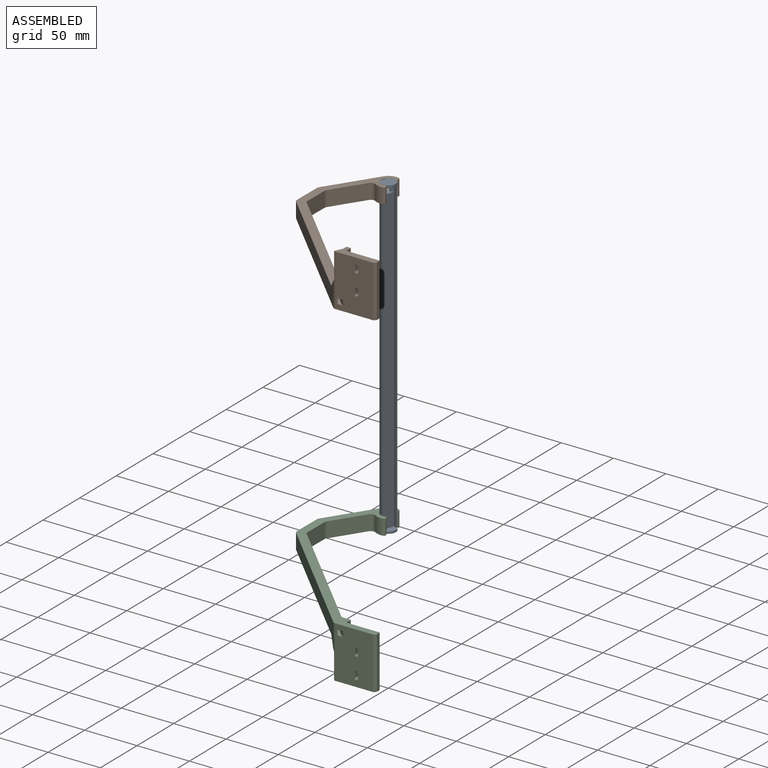
[diagram: assembled view]
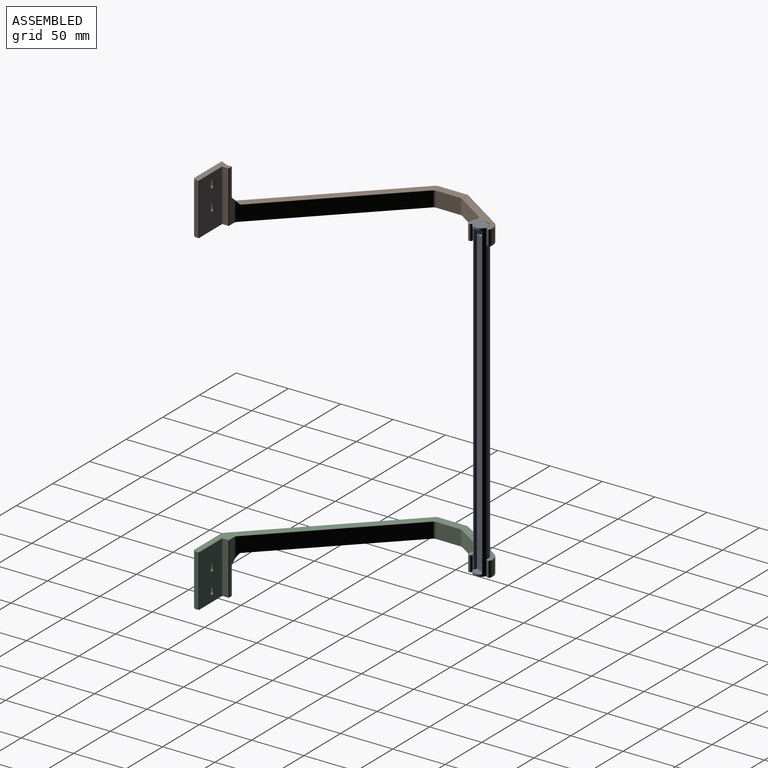
[diagram: assembled view, second angle]
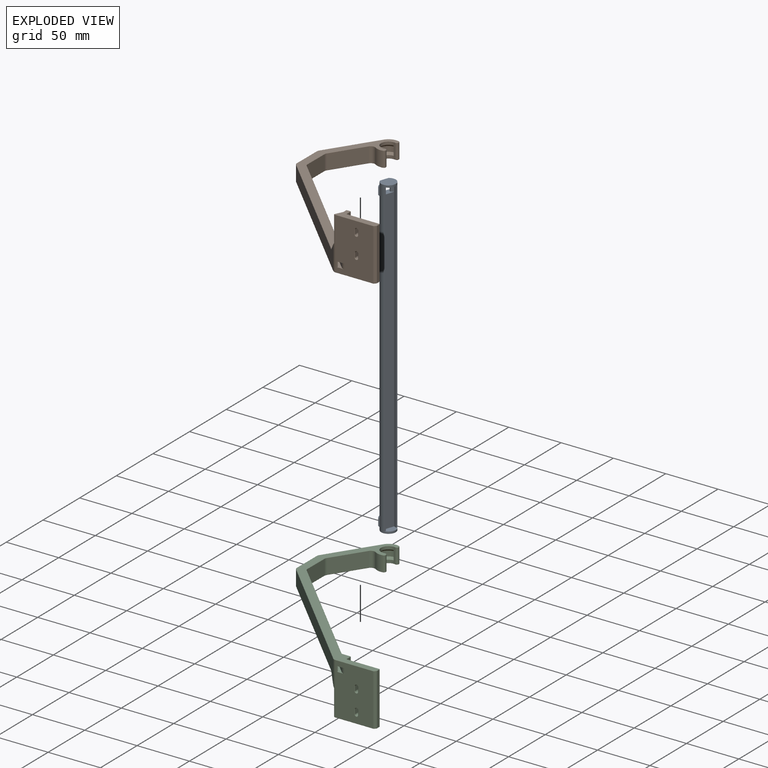
[diagram: exploded view]
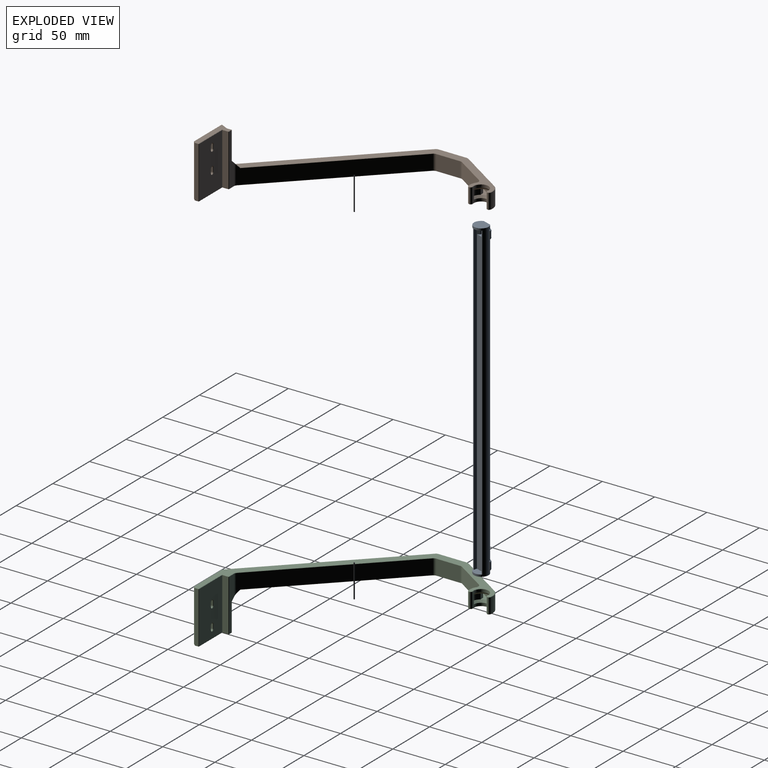
[diagram: exploded view, second angle]
ASSEMBLY  parts=3 mates=2
PART A: 41 faces, bbox 14.5x13.4x300.9 mm
  f0: plane 297x3mm, normal (-1,0.05,0), area 892.2mm2, adj f1,f4,f35,f36
  f1: plane 297x10.31mm, normal (0,-1,0), area 2982.9mm2, adj f0,f3,f27,f28,f35,f36,f37,f38
  f2: plane 297x1.1mm, normal (0,-1,0), area 327.6mm2, adj f3,f9,f35,f36
  f3: plane 297x3mm, normal (1,0.05,0), area 892.2mm2, adj f1,f2,f35,f36
  f4: plane 297x1.1mm, normal (0,-1,0), area 327.6mm2, adj f0,f9,f35,f36
  f5: plane 290.9x11.35mm, normal (0,1,0), area 2442.3mm2, adj f7,f9,f11,f13,f14,f18,f19,f20
  f6: plane 11.35x5mm, normal (0,1,0), area 46.1mm2, adj f7,f9,f11,f16,f17,f24,f26
  f7: cylinder r=8mm len=6.95mm, axis (0,0,-1), area 15.8mm2, adj f5,f6,f16,f22,f26,f27,f30,f34
  f8: plane 8.95x0.67mm, normal (-0.43,-0.9,0), area 6.1mm2, adj f9,f16,f22,f34
  f9: cylinder r=7mm len=300.9mm, axis (0,0,-1), area 6035.2mm2, adj f2,f4,f5,f6,f8,f10,f12,f15
  f10: plane 8.95x0.67mm, normal (0.43,-0.9,0), area 6.1mm2, adj f9,f17,f23,f33
  f11: cylinder r=8mm len=6.95mm, axis (0,0,-1), area 15.8mm2, adj f5,f6,f17,f23,f26,f27,f29,f33
  f12: plane 8.95x0.67mm, normal (0.43,-0.9,0), area 6.1mm2, adj f9,f18,f19,f32
  f13: cylinder r=8mm len=6.95mm, axis (0,0,1), area 17.1mm2, adj f5,f18,f19,f32
  f14: cylinder r=8mm len=6.95mm, axis (0,0,1), area 17.1mm2, adj f5,f20,f21,f31
  f15: plane 8.95x0.67mm, normal (-0.43,-0.9,0), area 6.1mm2, adj f9,f20,f21,f31
  f16: cone r=7mm half-angle=45deg, axis (0,0,-1), area 4.3mm2, adj f6,f7,f8,f9,f34
  f17: cone r=7mm half-angle=45deg, axis (0,0,-1), area 4.3mm2, adj f6,f9,f10,f11,f33
  f18: cone r=8mm half-angle=45deg, axis (0,0,1), area 4.3mm2, adj f5,f9,f12,f13,f32
  f19: cone r=7mm half-angle=45deg, axis (0,0,-1), area 4.3mm2, adj f5,f9,f12,f13,f32
  f20: cone r=7mm half-angle=45deg, axis (0,0,-1), area 4.3mm2, adj f5,f9,f14,f15,f31
  f21: cone r=8mm half-angle=45deg, axis (0,0,1), area 4.3mm2, adj f5,f9,f14,f15,f31
  f22: cone r=8mm half-angle=45deg, axis (0,0,1), area 4.3mm2, adj f5,f7,f8,f9,f34
  f23: cone r=8mm half-angle=45deg, axis (0,0,1), area 4.3mm2, adj f5,f9,f10,f11,f33
  f24: plane 14x12.64mm, normal (0,0,1), area 146.2mm2, adj f6,f9
  f25: plane 14x12.64mm, normal (0,0,-1), area 146.2mm2, adj f5,f9
  f26: plane 11.7x3.07mm, normal (0,0,-1), area 27.6mm2, adj f6,f7,f11,f28,f29,f30,f39,f40
  f27: plane 11.7x6.07mm, normal (0,0,1), area 50.1mm2, adj f1,f5,f7,f11,f29,f30,f37,f38
  f28: plane 10.06x3mm, normal (0,-0.71,-0.71), area 31.9mm2, adj f1,f26,f37,f38,f39,f40
  f29: plane 5x2.65mm, normal (-0.71,0.71,0), area 18.7mm2, adj f11,f26,f27,f39
  f30: plane 5x2.65mm, normal (0.71,0.71,0), area 18.7mm2, adj f7,f26,f27,f40
  f31: plane 7.46x0.35mm, normal (-0.95,-0.32,0), area 2.6mm2, adj f14,f15,f20,f21
  f32: plane 7.46x0.35mm, normal (0.95,-0.32,0), area 2.6mm2, adj f12,f13,f18,f19
  f33: plane 7.46x0.35mm, normal (0.95,-0.32,0), area 2.6mm2, adj f10,f11,f17,f23
  f34: plane 7.46x0.35mm, normal (-0.95,-0.32,0), area 2.6mm2, adj f7,f8,f16,f22
  f35: plane 12.21x6.57mm, normal (0,0,-1), area 61.4mm2, adj f0,f1,f2,f3,f4,f9
  f36: plane 12.21x6.57mm, normal (0,0,1), area 61.4mm2, adj f0,f1,f2,f3,f4,f9
  f37: plane 8x1.83mm, normal (-0.71,-0.71,0), area 18.3mm2, adj f1,f27,f28,f39
  f38: plane 8x1.83mm, normal (0.71,-0.71,0), area 18.3mm2, adj f1,f27,f28,f40
  f39: plane 6.17x1.41mm, normal (-1,0,0), area 7.8mm2, adj f26,f27,f28,f29,f37
  f40: plane 6.17x1.41mm, normal (1,0,0), area 7.8mm2, adj f26,f27,f28,f30,f38
PART B: 143 faces, bbox 160.9x202x50 mm
  f0: cylinder r=11mm len=14.5mm, axis (0,0,1), area 187.3mm2, adj f1,f15,f59,f79
  f1: plane 45.56x29.77mm, normal (-0.84,0.55,0), area 789.2mm2, adj f0,f35,f60,f83
  f2: plane 26.82x14.5mm, normal (-1,0.01,0), area 388.8mm2, adj f35,f36,f64,f94
  f3: plane 118.59x118.59mm, normal (-0.71,-0.71,0), area 2469.2mm2, adj f36,f37,f68,f107,f108,f113
  f4: plane 49.5x36.34mm, normal (0,-1,0), area 1713.2mm2, adj f21,f22,f37,f41,f46,f49,f72,f95
  f5: plane 49.5x3.75mm, normal (1,0,0), area 185.6mm2, adj f49,f80,f89,f90
  f6: plane 49.5x31.75mm, normal (0,1,0), area 1523.4mm2, adj f7,f90,f91,f104,f134,f135,f136,f137
  f7: plane 49.5x5.95mm, normal (1,0,0), area 294.5mm2, adj f6,f97,f110,f111
  f8: plane 49.5x6.98mm, normal (0,1,0), area 255.9mm2, adj f38,f98,f111,f119,f123,f125
  f9: plane 109.68x109.68mm, normal (0.71,0.71,0), area 2251.4mm2, adj f38,f39,f85,f116,f120,f122
  f10: plane 22.96x14.5mm, normal (1,-0.01,0), area 333mm2, adj f39,f40,f77,f106
  f11: plane 29.54x19.3mm, normal (0.84,-0.55,0), area 511.7mm2, adj f34,f40,f71,f93
  f12: cylinder r=11mm len=14.5mm, axis (0,0,1), area 124.7mm2, adj f13,f34,f67,f82
  f13: cylinder r=2mm len=14.5mm, axis (0,0,1), area 91.1mm2, adj f12,f14,f65,f78
  f14: cylinder r=7mm len=14.5mm, axis (0,0,1), area 162.2mm2, adj f13,f15,f20,f25,f47,f48,f63,f74
  f15: cylinder r=2mm len=14.5mm, axis (0,0,1), area 91.1mm2, adj f0,f14,f61,f75
  f16: plane 201.44x160.43mm, normal (0,0,-1), area 2141.3mm2, adj f59,f60,f61,f62,f63,f64,f65,f66
  f17: plane 193.89x116.7mm, normal (0,0,1), area 1815.2mm2, adj f74,f75,f78,f79,f82,f83,f86,f87
  f18: plane 120.34x120.34mm, normal (0.71,0.71,0), area 850.9mm2, adj f21,f22,f43,f46
  f19: plane 120.96x120.96mm, normal (-0.71,-0.71,0), area 855.3mm2, adj f21,f22,f41,f44
  f20: plane 9x2mm, normal (-1,0,0), area 14mm2, adj f14,f24,f47,f48
  f21: plane 195.31x128.97mm, normal (0,0,1), area 756.5mm2, adj f4,f18,f19,f23,f27,f28,f29,f30
  f22: plane 195.31x128.97mm, normal (0,0,-1), area 756.5mm2, adj f4,f18,f19,f23,f27,f28,f29,f30
  f23: plane 34.6x22.61mm, normal (-0.84,0.55,0), area 206.6mm2, adj f21,f22,f45,f142
  f24: cylinder r=9mm len=7.07mm, axis (0,0,1), area 40.7mm2, adj f20,f47,f48,f142
  f25: plane 9x2mm, normal (-1,0,0), area 14mm2, adj f14,f26,f47,f48
  f26: cylinder r=9mm len=7.87mm, axis (0,0,1), area 47.9mm2, adj f25,f27,f47,f48
  f27: plane 5.98x5mm, normal (0.84,-0.54,0), area 35.4mm2, adj f21,f22,f26,f28
  f28: plane 37.82x24.71mm, normal (0.84,-0.55,0), area 225.9mm2, adj f21,f22,f27,f42
  f29: plane 24.05x5mm, normal (1,-0.01,0), area 120.2mm2, adj f21,f22,f42,f43
  f30: plane 21.91x5mm, normal (-1,0.01,0), area 109.6mm2, adj f21,f22,f44,f45
  f31: plane 26.64x4.33mm, normal (-1,0,0), area 111.4mm2, adj f32,f50,f118,f123
  f32: plane 24.75x7.08mm, normal (-0.9,0.44,0), area 194.5mm2, adj f31,f50,f102,f114
  f33: plane 39.26x11.7mm, normal (0,0,1), area 231.7mm2, adj f88,f89,f95,f103,f104,f110,f114,f118
  f34: cylinder r=4mm len=14.5mm, axis (0,0,1), area 91.1mm2, adj f11,f12,f69,f86
  f35: cylinder r=4mm len=14.5mm, axis (0,0,1), area 33.2mm2, adj f1,f2,f62,f87
  f36: cylinder r=4mm len=14.5mm, axis (0,0,1), area 45.9mm2, adj f2,f3,f66,f100
  f37: cylinder r=4mm len=49.5mm, axis (0,0,1), area 107.3mm2, adj f3,f4,f70,f101,f102,f103
  f38: cylinder r=4mm len=19.87mm, axis (0,0,-1), area 57.3mm2, adj f8,f9,f92,f124
  f39: cylinder r=4mm len=14.5mm, axis (0,0,-1), area 45.9mm2, adj f9,f10,f81,f112
  f40: cylinder r=4mm len=14.5mm, axis (0,0,-1), area 33.2mm2, adj f10,f11,f73,f99
  f41: cylinder r=5mm len=5mm, axis (0,0,1), area 19.6mm2, adj f4,f19,f21,f22
  f42: cylinder r=5mm len=5mm, axis (0,0,-1), area 14.3mm2, adj f21,f22,f28,f29
  f43: cylinder r=5mm len=5mm, axis (0,0,-1), area 19.8mm2, adj f18,f21,f22,f29
  f44: cylinder r=5mm len=5mm, axis (0,0,1), area 19.8mm2, adj f19,f21,f22,f30
  f45: cylinder r=5mm len=5mm, axis (0,0,1), area 14.3mm2, adj f21,f22,f23,f30
  f46: cylinder r=0.5mm len=5mm, axis (0,0,-1), area 5.9mm2, adj f4,f18,f21,f22
  f47: cone r=7mm half-angle=45deg, axis (0,0,-1), area 71.1mm2, adj f14,f20,f22,f24,f25,f26
  f48: cone r=9mm half-angle=45deg, axis (0,0,1), area 71.1mm2, adj f14,f20,f21,f24,f25,f26
  f49: plane 49.5x2mm, normal (0.71,-0.71,0), area 140mm2, adj f4,f5,f76,f88
  f50: plane 14.23x11.13mm, normal (-0.64,0.31,0.71), area 128.2mm2, adj f31,f32,f101,f108,f117,f122,f123,f124
  f51: plane 5.5x4mm, normal (1,0,0), area 22mm2, adj f52,f54,f129,f141
  f52: cylinder r=1.53mm len=5.5mm, axis (0,1,0), area 26.4mm2, adj f51,f53,f127,f139
  f53: plane 5.5x4mm, normal (-1,0,0), area 22mm2, adj f52,f54,f126,f138
  f54: cylinder r=1.53mm len=5.5mm, axis (0,1,0), area 26.4mm2, adj f51,f53,f128,f140
  f55: plane 5.5x4mm, normal (-1,0,0), area 22mm2, adj f56,f58,f130,f134
  f56: cylinder r=1.53mm len=5.5mm, axis (0,1,0), area 26.4mm2, adj f55,f57,f131,f135
  f57: plane 5.5x4mm, normal (1,0,0), area 22mm2, adj f56,f58,f133,f137
  f58: cylinder r=1.53mm len=5.5mm, axis (0,1,0), area 26.4mm2, adj f55,f57,f132,f136
  f59: cone r=10.75mm half-angle=45deg, axis (0,0,1), area 4.5mm2, adj f0,f16,f60,f61
  f60: plane 45.7x29.98mm, normal (-0.59,0.39,-0.71), area 19.2mm2, adj f1,f16,f59,f62
  f61: cone r=1.75mm half-angle=45deg, axis (0,0,1), area 2.1mm2, adj f15,f16,f59,f63
  f62: cone r=3.75mm half-angle=45deg, axis (0,0,1), area 0.8mm2, adj f16,f35,f60,f64
  f63: cone r=7mm half-angle=45deg, axis (0,0,-1), area 8.9mm2, adj f14,f16,f61,f65
  f64: plane 26.82x0.43mm, normal (-0.71,0,-0.71), area 9.5mm2, adj f2,f16,f62,f66
  f65: cone r=1.75mm half-angle=45deg, axis (0,0,1), area 2.1mm2, adj f13,f16,f63,f67
  f66: cone r=3.75mm half-angle=45deg, axis (0,0,1), area 1.1mm2, adj f16,f36,f64,f68
  f67: cone r=10.75mm half-angle=45deg, axis (0,0,1), area 3mm2, adj f12,f16,f65,f69
  f68: plane 118.76x118.76mm, normal (-0.5,-0.5,-0.71), area 59.3mm2, adj f3,f16,f66,f70
  f69: cone r=4.25mm half-angle=45deg, axis (0,0,-1), area 2.3mm2, adj f16,f34,f67,f71
  f70: cone r=3.75mm half-angle=45deg, axis (0,0,1), area 1.1mm2, adj f16,f37,f68,f72
  f71: plane 29.68x19.51mm, normal (0.59,-0.39,-0.71), area 12.5mm2, adj f11,f16,f69,f73
  f72: plane 36.34x0.25mm, normal (0,-0.71,-0.71), area 12.8mm2, adj f4,f16,f70,f76
  f73: cone r=4.25mm half-angle=45deg, axis (0,0,-1), area 0.8mm2, adj f16,f40,f71,f77
  f74: cone r=7.25mm half-angle=45deg, axis (0,0,1), area 8.9mm2, adj f14,f17,f75,f78
  f75: cone r=2mm half-angle=45deg, axis (0,0,-1), area 2.1mm2, adj f15,f17,f74,f79
  f76: plane 2.1x2.1mm, normal (0.5,-0.5,-0.71), area 1mm2, adj f16,f49,f72,f80
  f77: plane 22.97x0.4mm, normal (0.71,0,-0.71), area 8.1mm2, adj f10,f16,f73,f81
  f78: cone r=2mm half-angle=45deg, axis (0,0,-1), area 2.1mm2, adj f13,f17,f74,f82
  f79: cone r=11mm half-angle=45deg, axis (0,0,-1), area 4.5mm2, adj f0,f17,f75,f83
  f80: plane 3.75x0.25mm, normal (0.71,0,-0.71), area 1.3mm2, adj f5,f16,f76,f84
  f81: cone r=4.25mm half-angle=45deg, axis (0,0,-1), area 1.2mm2, adj f16,f39,f77,f85
  f82: cone r=11mm half-angle=45deg, axis (0,0,-1), area 3mm2, adj f12,f17,f78,f86
  f83: plane 45.7x29.98mm, normal (-0.59,0.39,0.71), area 19.2mm2, adj f1,f17,f79,f87
  f84: plane 0.25x0.25mm, normal (0.58,0.58,-0.58), area 0.1mm2, adj f80,f90,f91
  f85: plane 109.85x109.85mm, normal (0.5,0.5,-0.71), area 54.8mm2, adj f9,f16,f81,f92
  f86: cone r=4.25mm half-angle=45deg, axis (0,0,1), area 2.3mm2, adj f17,f34,f82,f93
  f87: cone r=3.75mm half-angle=45deg, axis (0,0,-1), area 0.8mm2, adj f17,f35,f83,f94
  f88: plane 2.1x2.1mm, normal (0.5,-0.5,0.71), area 1mm2, adj f33,f49,f89,f95
  f89: plane 3.75x0.25mm, normal (0.71,0,0.71), area 1.3mm2, adj f5,f33,f88,f96
  f90: plane 49.5x0.25mm, normal (0.71,0.71,0), area 17.5mm2, adj f5,f6,f84,f96
  f91: plane 32x0.25mm, normal (0,0.71,-0.71), area 11.3mm2, adj f6,f16,f84,f97
  f92: cone r=4.25mm half-angle=45deg, axis (0,0,-1), area 1.1mm2, adj f16,f38,f85,f98
  f93: plane 29.68x19.51mm, normal (0.59,-0.39,0.71), area 12.5mm2, adj f11,f17,f86,f99
  f94: plane 26.82x0.43mm, normal (-0.71,0,0.71), area 9.5mm2, adj f2,f17,f87,f100
  f95: plane 36.34x0.25mm, normal (0,-0.71,0.71), area 12.8mm2, adj f4,f33,f88,f103
  f96: plane 0.25x0.25mm, normal (0.58,0.58,0.58), area 0.1mm2, adj f89,f90,f104
  f97: plane 6.2x0.25mm, normal (0.71,0,-0.71), area 2.1mm2, adj f7,f16,f91,f105
  f98: plane 6.98x0.25mm, normal (0,0.71,-0.71), area 2.5mm2, adj f8,f16,f92,f105
  f99: cone r=4.25mm half-angle=45deg, axis (0,0,1), area 0.8mm2, adj f17,f40,f93,f106
  f100: cone r=3.75mm half-angle=45deg, axis (0,0,-1), area 1.1mm2, adj f17,f36,f94,f107
  f101: bspline ~1.91x1.58mm, area 0.8mm2, adj f37,f50,f102,f108
  f102: plane 24.86x0.35mm, normal (-0.92,-0.39,0), area 9.3mm2, adj f32,f37,f101,f109
  f103: cone r=3.75mm half-angle=45deg, axis (0,0,-1), area 0.4mm2, adj f33,f37,f95,f109
  f104: plane 32x0.25mm, normal (0,0.71,0.71), area 11.3mm2, adj f6,f33,f96,f110
  f105: plane 0.25x0.25mm, normal (0.58,0.58,-0.58), area 0.1mm2, adj f97,f98,f111
  f106: plane 22.97x0.4mm, normal (0.71,0,0.71), area 8.1mm2, adj f10,f17,f99,f112
  f107: plane 112.31x112.31mm, normal (-0.5,-0.5,0.71), area 56.1mm2, adj f3,f17,f100,f113
  f108: plane 8.44x6.44mm, normal (-0.86,-0.25,0.45), area 3.7mm2, adj f3,f50,f101,f113
  f109: plane 0.35x0.25mm, normal (-0.77,-0.33,0.55), area 0.1mm2, adj f102,f103,f114
  f110: plane 6.2x0.25mm, normal (0.71,0,0.71), area 2.1mm2, adj f7,f33,f104,f115
  f111: plane 49.5x0.25mm, normal (0.71,0.71,0), area 17.5mm2, adj f7,f8,f105,f115
  f112: cone r=4.25mm half-angle=45deg, axis (0,0,1), area 1.2mm2, adj f17,f39,f106,f116
  f113: bspline ~0.44x0.32mm, area 0.1mm2, adj f3,f107,f108,f117
  f114: plane 7.18x3.68mm, normal (-0.64,0.31,0.71), area 2.8mm2, adj f32,f33,f109,f118
  f115: plane 0.25x0.25mm, normal (0.58,0.58,0.58), area 0.1mm2, adj f110,f111,f119
  f116: plane 108.11x108.11mm, normal (0.5,0.5,0.71), area 54mm2, adj f9,f17,f112,f120
  f117: plane 7.33x3.57mm, normal (-0.34,0.17,0.92), area 1.5mm2, adj f17,f50,f113,f120
  f118: plane 4.39x0.25mm, normal (-0.71,0,0.71), area 1.5mm2, adj f31,f33,f114,f121
  f119: plane 3.8x0.25mm, normal (0,0.71,0.71), area 1.3mm2, adj f8,f33,f115,f121
  f120: bspline ~0.44x0.36mm, area 0.1mm2, adj f9,f116,f117,f122
  f121: plane 0.25x0.25mm, normal (-0.58,0.58,0.58), area 0.1mm2, adj f118,f119,f123
  f122: plane 2.15x1.81mm, normal (0.06,0.82,0.57), area 1.1mm2, adj f9,f50,f120,f124
  f123: plane 26.77x0.25mm, normal (-0.71,0.71,0), area 9.4mm2, adj f8,f31,f50,f121,f125
  f124: bspline ~3.42x3.16mm, area 1.6mm2, adj f38,f50,f122,f125
  f125: plane 3.34x3.02mm, normal (-0.39,0.81,0.44), area 1.3mm2, adj f8,f50,f123,f124
  f126: plane 4x0.25mm, normal (-0.71,-0.71,0), area 1.4mm2, adj f4,f53,f127,f128
  f127: cone r=1.53mm half-angle=45deg, axis (0,-1,0), area 1.8mm2, adj f4,f52,f126,f129
  f128: cone r=1.53mm half-angle=45deg, axis (0,-1,0), area 1.8mm2, adj f4,f54,f126,f129
  f129: plane 4x0.25mm, normal (0.71,-0.71,0), area 1.4mm2, adj f4,f51,f127,f128
  f130: plane 4x0.25mm, normal (-0.71,-0.71,0), area 1.4mm2, adj f4,f55,f131,f132
  f131: cone r=1.53mm half-angle=45deg, axis (0,-1,0), area 1.8mm2, adj f4,f56,f130,f133
  f132: cone r=1.53mm half-angle=45deg, axis (0,-1,0), area 1.8mm2, adj f4,f58,f130,f133
  f133: plane 4x0.25mm, normal (0.71,-0.71,0), area 1.4mm2, adj f4,f57,f131,f132
  f134: plane 4x0.25mm, normal (-0.71,0.71,0), area 1.4mm2, adj f6,f55,f135,f136
  f135: cone r=1.78mm half-angle=45deg, axis (0,1,0), area 1.8mm2, adj f6,f56,f134,f137
  f136: cone r=1.78mm half-angle=45deg, axis (0,1,0), area 1.8mm2, adj f6,f58,f134,f137
  f137: plane 4x0.25mm, normal (0.71,0.71,0), area 1.4mm2, adj f6,f57,f135,f136
  f138: plane 4x0.25mm, normal (-0.71,0.71,0), area 1.4mm2, adj f6,f53,f139,f140
  f139: cone r=1.78mm half-angle=45deg, axis (0,1,0), area 1.8mm2, adj f6,f52,f138,f141
  f140: cone r=1.78mm half-angle=45deg, axis (0,1,0), area 1.8mm2, adj f6,f54,f138,f141
  f141: plane 4x0.25mm, normal (0.71,0.71,0), area 1.4mm2, adj f6,f51,f139,f140
  f142: plane 5x3.71mm, normal (-0.04,1,0), area 18.6mm2, adj f21,f22,f23,f24
PART C: 143 faces, bbox 160.9x202x50 mm
  f0: cylinder r=11mm len=14.5mm, axis (0,0,-1), area 187.3mm2, adj f1,f15,f59,f79
  f1: plane 45.56x29.77mm, normal (-0.84,0.55,0), area 789.2mm2, adj f0,f35,f60,f83
  f2: plane 26.82x14.5mm, normal (-1,0.01,0), area 388.8mm2, adj f35,f36,f64,f94
  f3: plane 118.59x118.59mm, normal (-0.71,-0.71,0), area 2469.2mm2, adj f36,f37,f68,f107,f108,f113
  f4: plane 49.5x36.34mm, normal (0,-1,0), area 1713.2mm2, adj f21,f22,f37,f41,f46,f49,f72,f95
  f5: plane 49.5x3.75mm, normal (1,0,0), area 185.6mm2, adj f49,f80,f89,f90
  f6: plane 49.5x31.75mm, normal (0,1,0), area 1523.4mm2, adj f7,f90,f91,f104,f134,f135,f136,f137
  f7: plane 49.5x5.95mm, normal (1,0,0), area 294.5mm2, adj f6,f97,f110,f111
  f8: plane 49.5x6.98mm, normal (0,1,0), area 255.9mm2, adj f38,f98,f111,f119,f123,f125
  f9: plane 109.68x109.68mm, normal (0.71,0.71,0), area 2251.4mm2, adj f38,f39,f85,f116,f120,f122
  f10: plane 22.96x14.5mm, normal (1,-0.01,0), area 333mm2, adj f39,f40,f77,f106
  f11: plane 29.54x19.3mm, normal (0.84,-0.55,0), area 511.7mm2, adj f34,f40,f71,f93
  f12: cylinder r=11mm len=14.5mm, axis (0,0,-1), area 124.7mm2, adj f13,f34,f67,f82
  f13: cylinder r=2mm len=14.5mm, axis (0,0,-1), area 91.1mm2, adj f12,f14,f65,f78
  f14: cylinder r=7mm len=14.5mm, axis (0,0,-1), area 162.2mm2, adj f13,f15,f20,f25,f47,f48,f63,f74
  f15: cylinder r=2mm len=14.5mm, axis (0,0,-1), area 91.1mm2, adj f0,f14,f61,f75
  f16: plane 201.44x160.43mm, normal (0,0,1), area 2141.3mm2, adj f59,f60,f61,f62,f63,f64,f65,f66
  f17: plane 193.89x116.7mm, normal (0,0,-1), area 1815.2mm2, adj f74,f75,f78,f79,f82,f83,f86,f87
  f18: plane 120.34x120.34mm, normal (0.71,0.71,0), area 850.9mm2, adj f21,f22,f43,f46
  f19: plane 120.96x120.96mm, normal (-0.71,-0.71,0), area 855.3mm2, adj f21,f22,f41,f44
  f20: plane 9x2mm, normal (-1,0,0), area 14mm2, adj f14,f24,f47,f48
  f21: plane 195.31x128.97mm, normal (0,0,-1), area 756.5mm2, adj f4,f18,f19,f23,f27,f28,f29,f30
  f22: plane 195.31x128.97mm, normal (0,0,1), area 756.5mm2, adj f4,f18,f19,f23,f27,f28,f29,f30
  f23: plane 34.6x22.61mm, normal (-0.84,0.55,0), area 206.6mm2, adj f21,f22,f45,f142
  f24: cylinder r=9mm len=7.07mm, axis (0,0,-1), area 40.7mm2, adj f20,f47,f48,f142
  f25: plane 9x2mm, normal (-1,0,0), area 14mm2, adj f14,f26,f47,f48
  f26: cylinder r=9mm len=7.87mm, axis (0,0,-1), area 47.9mm2, adj f25,f27,f47,f48
  f27: plane 5.98x5mm, normal (0.84,-0.54,0), area 35.4mm2, adj f21,f22,f26,f28
  f28: plane 37.82x24.71mm, normal (0.84,-0.55,0), area 225.9mm2, adj f21,f22,f27,f42
  f29: plane 24.05x5mm, normal (1,-0.01,0), area 120.2mm2, adj f21,f22,f42,f43
  f30: plane 21.91x5mm, normal (-1,0.01,0), area 109.6mm2, adj f21,f22,f44,f45
  f31: plane 26.64x4.33mm, normal (-1,0,0), area 111.4mm2, adj f32,f50,f118,f123
  f32: plane 24.75x7.08mm, normal (-0.9,0.44,0), area 194.5mm2, adj f31,f50,f102,f114
  f33: plane 39.26x11.7mm, normal (0,0,-1), area 231.7mm2, adj f88,f89,f95,f103,f104,f110,f114,f118
  f34: cylinder r=4mm len=14.5mm, axis (0,0,-1), area 91.1mm2, adj f11,f12,f69,f86
  f35: cylinder r=4mm len=14.5mm, axis (0,0,-1), area 33.2mm2, adj f1,f2,f62,f87
  f36: cylinder r=4mm len=14.5mm, axis (0,0,-1), area 45.9mm2, adj f2,f3,f66,f100
  f37: cylinder r=4mm len=49.5mm, axis (0,0,-1), area 107.3mm2, adj f3,f4,f70,f101,f102,f103
  f38: cylinder r=4mm len=19.87mm, axis (0,0,1), area 57.3mm2, adj f8,f9,f92,f124
  f39: cylinder r=4mm len=14.5mm, axis (0,0,1), area 45.9mm2, adj f9,f10,f81,f112
  f40: cylinder r=4mm len=14.5mm, axis (0,0,1), area 33.2mm2, adj f10,f11,f73,f99
  f41: cylinder r=5mm len=5mm, axis (0,0,-1), area 19.6mm2, adj f4,f19,f21,f22
  f42: cylinder r=5mm len=5mm, axis (0,0,1), area 14.3mm2, adj f21,f22,f28,f29
  f43: cylinder r=5mm len=5mm, axis (0,0,1), area 19.8mm2, adj f18,f21,f22,f29
  f44: cylinder r=5mm len=5mm, axis (0,0,-1), area 19.8mm2, adj f19,f21,f22,f30
  f45: cylinder r=5mm len=5mm, axis (0,0,-1), area 14.3mm2, adj f21,f22,f23,f30
  f46: cylinder r=0.5mm len=5mm, axis (0,0,1), area 5.9mm2, adj f4,f18,f21,f22
  f47: cone r=7mm half-angle=45deg, axis (0,0,1), area 71.1mm2, adj f14,f20,f22,f24,f25,f26
  f48: cone r=9mm half-angle=45deg, axis (0,0,-1), area 71.1mm2, adj f14,f20,f21,f24,f25,f26
  f49: plane 49.5x2mm, normal (0.71,-0.71,0), area 140mm2, adj f4,f5,f76,f88
  f50: plane 14.23x11.13mm, normal (-0.64,0.31,-0.71), area 128.2mm2, adj f31,f32,f101,f108,f117,f122,f123,f124
  f51: plane 5.5x4mm, normal (1,0,0), area 22mm2, adj f52,f54,f129,f141
  f52: cylinder r=1.53mm len=5.5mm, axis (0,1,0), area 26.4mm2, adj f51,f53,f127,f139
  f53: plane 5.5x4mm, normal (-1,0,0), area 22mm2, adj f52,f54,f126,f138
  f54: cylinder r=1.53mm len=5.5mm, axis (0,1,0), area 26.4mm2, adj f51,f53,f128,f140
  f55: plane 5.5x4mm, normal (-1,0,0), area 22mm2, adj f56,f58,f130,f134
  f56: cylinder r=1.53mm len=5.5mm, axis (0,1,0), area 26.4mm2, adj f55,f57,f131,f135
  f57: plane 5.5x4mm, normal (1,0,0), area 22mm2, adj f56,f58,f133,f137
  f58: cylinder r=1.53mm len=5.5mm, axis (0,1,0), area 26.4mm2, adj f55,f57,f132,f136
  f59: cone r=10.75mm half-angle=45deg, axis (0,0,-1), area 4.5mm2, adj f0,f16,f60,f61
  f60: plane 45.7x29.98mm, normal (-0.59,0.39,0.71), area 19.2mm2, adj f1,f16,f59,f62
  f61: cone r=1.75mm half-angle=45deg, axis (0,0,-1), area 2.1mm2, adj f15,f16,f59,f63
  f62: cone r=3.75mm half-angle=45deg, axis (0,0,-1), area 0.8mm2, adj f16,f35,f60,f64
  f63: cone r=7mm half-angle=45deg, axis (0,0,1), area 8.9mm2, adj f14,f16,f61,f65
  f64: plane 26.82x0.43mm, normal (-0.71,0,0.71), area 9.5mm2, adj f2,f16,f62,f66
  f65: cone r=1.75mm half-angle=45deg, axis (0,0,-1), area 2.1mm2, adj f13,f16,f63,f67
  f66: cone r=3.75mm half-angle=45deg, axis (0,0,-1), area 1.1mm2, adj f16,f36,f64,f68
  f67: cone r=10.75mm half-angle=45deg, axis (0,0,-1), area 3mm2, adj f12,f16,f65,f69
  f68: plane 118.76x118.76mm, normal (-0.5,-0.5,0.71), area 59.3mm2, adj f3,f16,f66,f70
  f69: cone r=4.25mm half-angle=45deg, axis (0,0,1), area 2.3mm2, adj f16,f34,f67,f71
  f70: cone r=3.75mm half-angle=45deg, axis (0,0,-1), area 1.1mm2, adj f16,f37,f68,f72
  f71: plane 29.68x19.51mm, normal (0.59,-0.39,0.71), area 12.5mm2, adj f11,f16,f69,f73
  f72: plane 36.34x0.25mm, normal (0,-0.71,0.71), area 12.8mm2, adj f4,f16,f70,f76
  f73: cone r=4.25mm half-angle=45deg, axis (0,0,1), area 0.8mm2, adj f16,f40,f71,f77
  f74: cone r=7.25mm half-angle=45deg, axis (0,0,-1), area 8.9mm2, adj f14,f17,f75,f78
  f75: cone r=2mm half-angle=45deg, axis (0,0,1), area 2.1mm2, adj f15,f17,f74,f79
  f76: plane 2.1x2.1mm, normal (0.5,-0.5,0.71), area 1mm2, adj f16,f49,f72,f80
  f77: plane 22.97x0.4mm, normal (0.71,0,0.71), area 8.1mm2, adj f10,f16,f73,f81
  f78: cone r=2mm half-angle=45deg, axis (0,0,1), area 2.1mm2, adj f13,f17,f74,f82
  f79: cone r=11mm half-angle=45deg, axis (0,0,1), area 4.5mm2, adj f0,f17,f75,f83
  f80: plane 3.75x0.25mm, normal (0.71,0,0.71), area 1.3mm2, adj f5,f16,f76,f84
  f81: cone r=4.25mm half-angle=45deg, axis (0,0,1), area 1.2mm2, adj f16,f39,f77,f85
  f82: cone r=11mm half-angle=45deg, axis (0,0,1), area 3mm2, adj f12,f17,f78,f86
  f83: plane 45.7x29.98mm, normal (-0.59,0.39,-0.71), area 19.2mm2, adj f1,f17,f79,f87
  f84: plane 0.25x0.25mm, normal (0.58,0.58,0.58), area 0.1mm2, adj f80,f90,f91
  f85: plane 109.85x109.85mm, normal (0.5,0.5,0.71), area 54.8mm2, adj f9,f16,f81,f92
  f86: cone r=4.25mm half-angle=45deg, axis (0,0,-1), area 2.3mm2, adj f17,f34,f82,f93
  f87: cone r=3.75mm half-angle=45deg, axis (0,0,1), area 0.8mm2, adj f17,f35,f83,f94
  f88: plane 2.1x2.1mm, normal (0.5,-0.5,-0.71), area 1mm2, adj f33,f49,f89,f95
  f89: plane 3.75x0.25mm, normal (0.71,0,-0.71), area 1.3mm2, adj f5,f33,f88,f96
  f90: plane 49.5x0.25mm, normal (0.71,0.71,0), area 17.5mm2, adj f5,f6,f84,f96
  f91: plane 32x0.25mm, normal (0,0.71,0.71), area 11.3mm2, adj f6,f16,f84,f97
  f92: cone r=4.25mm half-angle=45deg, axis (0,0,1), area 1.1mm2, adj f16,f38,f85,f98
  f93: plane 29.68x19.51mm, normal (0.59,-0.39,-0.71), area 12.5mm2, adj f11,f17,f86,f99
  f94: plane 26.82x0.43mm, normal (-0.71,0,-0.71), area 9.5mm2, adj f2,f17,f87,f100
  f95: plane 36.34x0.25mm, normal (0,-0.71,-0.71), area 12.8mm2, adj f4,f33,f88,f103
  f96: plane 0.25x0.25mm, normal (0.58,0.58,-0.58), area 0.1mm2, adj f89,f90,f104
  f97: plane 6.2x0.25mm, normal (0.71,0,0.71), area 2.1mm2, adj f7,f16,f91,f105
  f98: plane 6.98x0.25mm, normal (0,0.71,0.71), area 2.5mm2, adj f8,f16,f92,f105
  f99: cone r=4.25mm half-angle=45deg, axis (0,0,-1), area 0.8mm2, adj f17,f40,f93,f106
  f100: cone r=3.75mm half-angle=45deg, axis (0,0,1), area 1.1mm2, adj f17,f36,f94,f107
  f101: bspline ~2x1.67mm, area 0.8mm2, adj f37,f50,f102,f108
  f102: plane 24.86x0.35mm, normal (-0.92,-0.39,0), area 9.3mm2, adj f32,f37,f101,f109
  f103: cone r=3.75mm half-angle=45deg, axis (0,0,1), area 0.4mm2, adj f33,f37,f95,f109
  f104: plane 32x0.25mm, normal (0,0.71,-0.71), area 11.3mm2, adj f6,f33,f96,f110
  f105: plane 0.25x0.25mm, normal (0.58,0.58,0.58), area 0.1mm2, adj f97,f98,f111
  f106: plane 22.97x0.4mm, normal (0.71,0,-0.71), area 8.1mm2, adj f10,f17,f99,f112
  f107: plane 112.31x112.31mm, normal (-0.5,-0.5,-0.71), area 56.1mm2, adj f3,f17,f100,f113
  f108: plane 8.44x6.44mm, normal (-0.86,-0.25,-0.45), area 3.7mm2, adj f3,f50,f101,f113
  f109: plane 0.35x0.25mm, normal (-0.77,-0.33,-0.55), area 0.1mm2, adj f102,f103,f114
  f110: plane 6.2x0.25mm, normal (0.71,0,-0.71), area 2.1mm2, adj f7,f33,f104,f115
  f111: plane 49.5x0.25mm, normal (0.71,0.71,0), area 17.5mm2, adj f7,f8,f105,f115
  f112: cone r=4.25mm half-angle=45deg, axis (0,0,-1), area 1.2mm2, adj f17,f39,f106,f116
  f113: bspline ~0.44x0.32mm, area 0.1mm2, adj f3,f107,f108,f117
  f114: plane 7.18x3.68mm, normal (-0.64,0.31,-0.71), area 2.8mm2, adj f32,f33,f109,f118
  f115: plane 0.25x0.25mm, normal (0.58,0.58,-0.58), area 0.1mm2, adj f110,f111,f119
  f116: plane 108.11x108.11mm, normal (0.5,0.5,-0.71), area 54mm2, adj f9,f17,f112,f120
  f117: plane 7.33x3.57mm, normal (-0.34,0.17,-0.92), area 1.5mm2, adj f17,f50,f113,f120
  f118: plane 4.39x0.25mm, normal (-0.71,0,-0.71), area 1.5mm2, adj f31,f33,f114,f121
  f119: plane 3.8x0.25mm, normal (0,0.71,-0.71), area 1.3mm2, adj f8,f33,f115,f121
  f120: bspline ~0.44x0.36mm, area 0.1mm2, adj f9,f116,f117,f122
  f121: plane 0.25x0.25mm, normal (-0.58,0.58,-0.58), area 0.1mm2, adj f118,f119,f123
  f122: plane 2.15x1.81mm, normal (0.06,0.82,-0.57), area 1.1mm2, adj f9,f50,f120,f124
  f123: plane 26.77x0.25mm, normal (-0.71,0.71,0), area 9.4mm2, adj f8,f31,f50,f121,f125
  f124: bspline ~3.42x3.16mm, area 1.6mm2, adj f38,f50,f122,f125
  f125: plane 3.34x3.02mm, normal (-0.39,0.81,-0.44), area 1.3mm2, adj f8,f50,f123,f124
  f126: plane 4x0.25mm, normal (-0.71,-0.71,0), area 1.4mm2, adj f4,f53,f127,f128
  f127: cone r=1.53mm half-angle=45deg, axis (0,-1,0), area 1.8mm2, adj f4,f52,f126,f129
  f128: cone r=1.53mm half-angle=45deg, axis (0,-1,0), area 1.8mm2, adj f4,f54,f126,f129
  f129: plane 4x0.25mm, normal (0.71,-0.71,0), area 1.4mm2, adj f4,f51,f127,f128
  f130: plane 4x0.25mm, normal (-0.71,-0.71,0), area 1.4mm2, adj f4,f55,f131,f132
  f131: cone r=1.53mm half-angle=45deg, axis (0,-1,0), area 1.8mm2, adj f4,f56,f130,f133
  f132: cone r=1.53mm half-angle=45deg, axis (0,-1,0), area 1.8mm2, adj f4,f58,f130,f133
  f133: plane 4x0.25mm, normal (0.71,-0.71,0), area 1.4mm2, adj f4,f57,f131,f132
  f134: plane 4x0.25mm, normal (-0.71,0.71,0), area 1.4mm2, adj f6,f55,f135,f136
  f135: cone r=1.78mm half-angle=45deg, axis (0,1,0), area 1.8mm2, adj f6,f56,f134,f137
  f136: cone r=1.78mm half-angle=45deg, axis (0,1,0), area 1.8mm2, adj f6,f58,f134,f137
  f137: plane 4x0.25mm, normal (0.71,0.71,0), area 1.4mm2, adj f6,f57,f135,f136
  f138: plane 4x0.25mm, normal (-0.71,0.71,0), area 1.4mm2, adj f6,f53,f139,f140
  f139: cone r=1.78mm half-angle=45deg, axis (0,1,0), area 1.8mm2, adj f6,f52,f138,f141
  f140: cone r=1.78mm half-angle=45deg, axis (0,1,0), area 1.8mm2, adj f6,f54,f138,f141
  f141: plane 4x0.25mm, normal (0.71,0.71,0), area 1.4mm2, adj f6,f51,f139,f140
  f142: plane 5x3.71mm, normal (-0.04,1,0), area 18.6mm2, adj f21,f22,f23,f24
PLACE A rot(axis=(0,0,1),71.2deg) t=(30.88,115.82,294.99)mm
PLACE B t=(18.24,-36.4,206.94)mm
PLACE C t=(18.24,-36.4,5.79)mm fixed
MATE revolute A.f7 <-> B.f0  axis (0,0,1) through (-27.13,110.47,306.94)mm
MATE revolute A.f7 <-> C.f0  axis (0,0,-1) through (-27.13,110.47,6.04)mm
